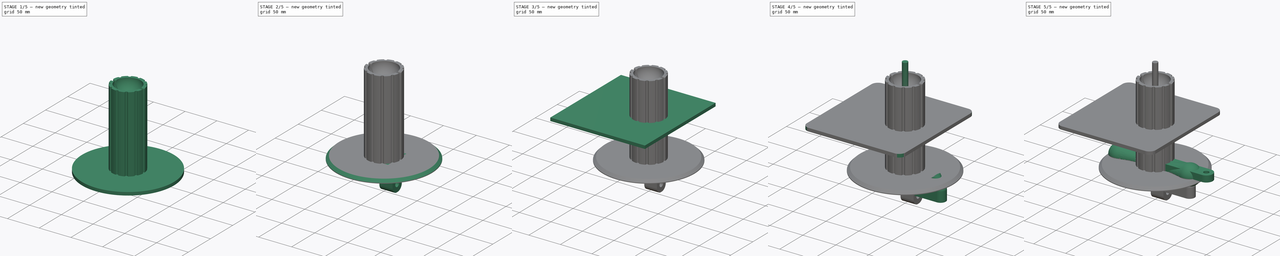
[diagram: build sequence overview — one tinted view per stage of 5, left to right]
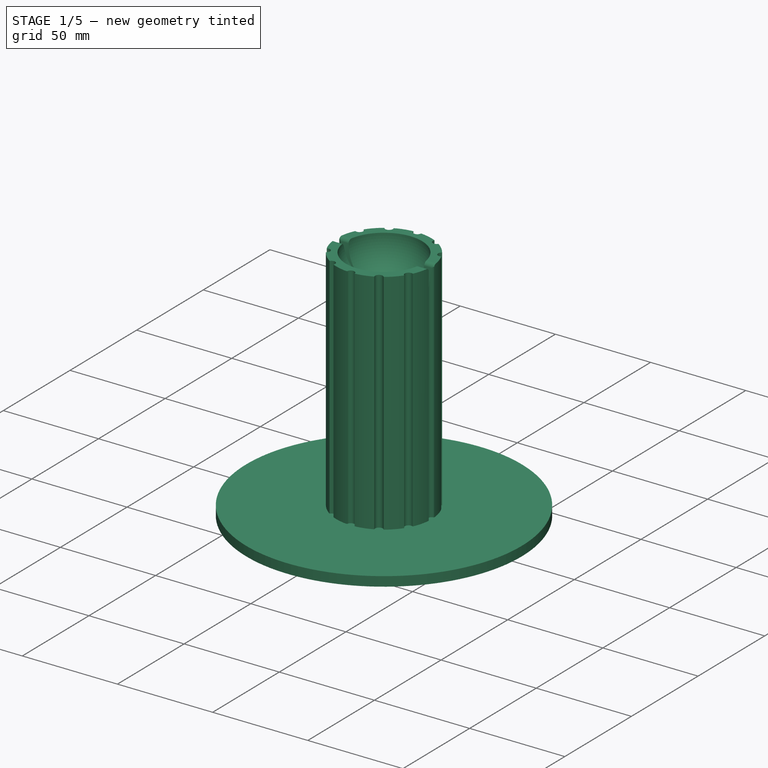
[diagram: stage 1 of 5 — iso view after this stage's code; geometry added in this stage tinted green]
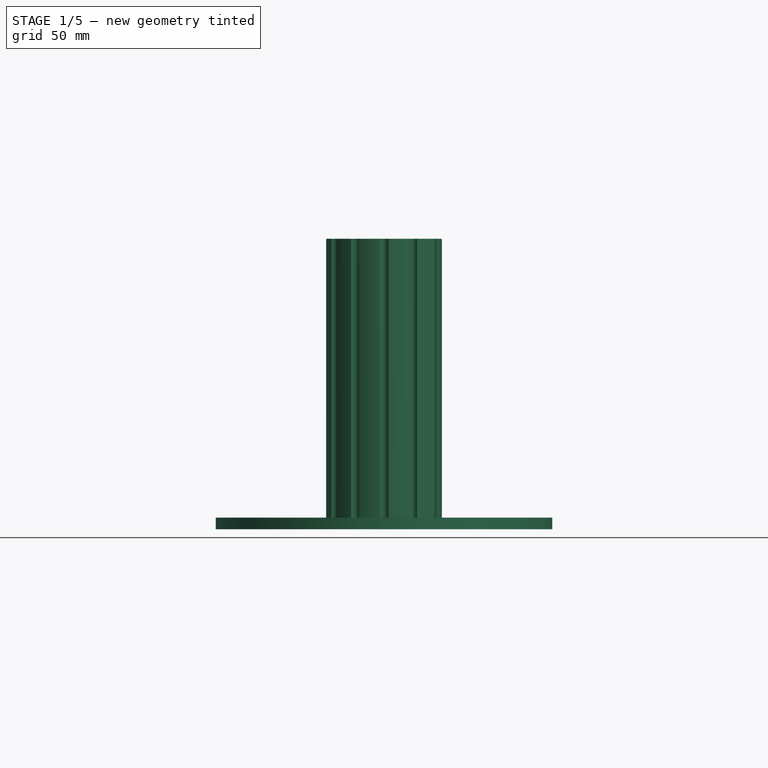
[diagram: stage 1 of 5 — front view after this stage's code; geometry added in this stage tinted green]
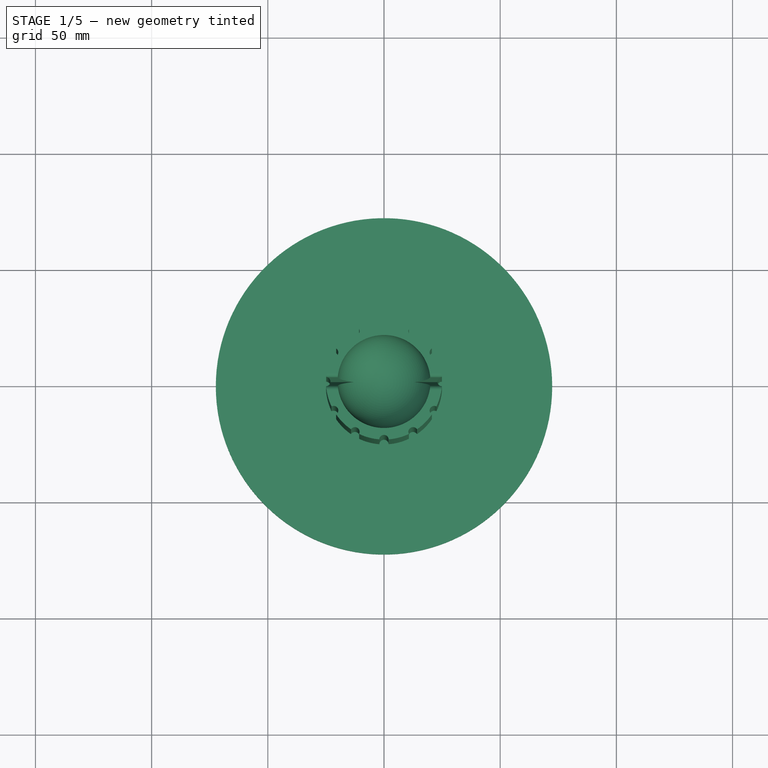
[diagram: stage 1 of 5 — top view after this stage's code; geometry added in this stage tinted green]
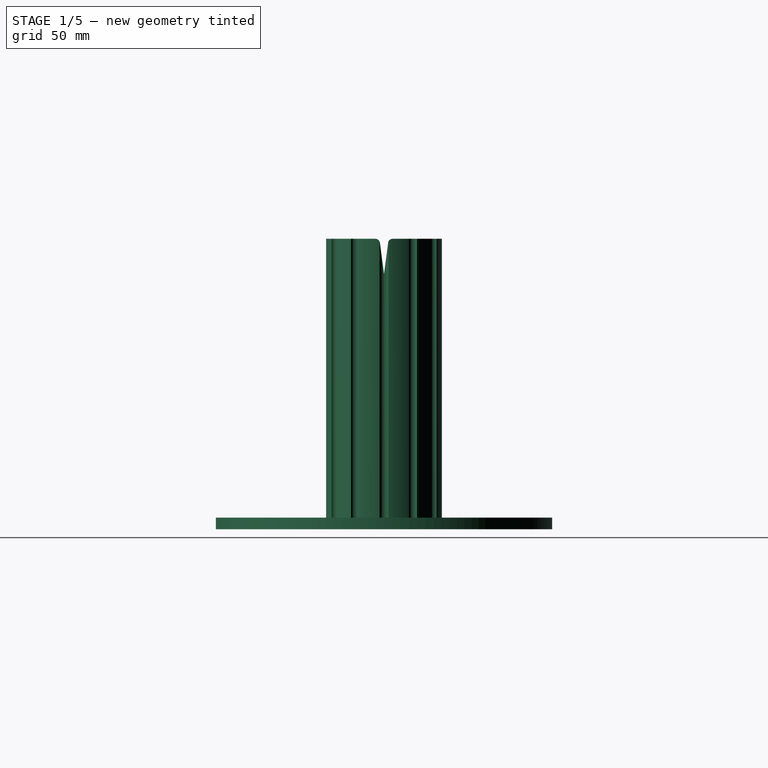
[diagram: stage 1 of 5 — right view after this stage's code; geometry added in this stage tinted green]
FCSTD DOCUMENT  (FreeCAD 0.19R24291 (Git))
Label: woolWinderParts
License: All rights reserved
LicenseURL: http://en.wikipedia.org/wiki/All_rights_reserved
objects: Sketcher::SketchObject×29, PartDesign::Pad×16, PartDesign::Body×11, PartDesign::Pocket×10, PartDesign::Plane×4, App::Part×4, PartDesign::Chamfer×2, PartDesign::Revolution×2, PartDesign::AdditiveCylinder×1, PartDesign::PolarPattern×1, PartDesign::Groove×1, PartDesign::Fillet×1, PartDesign::Line×1, PartDesign::Mirrored×1
note: 113 computed .brp shape members not serialized (recipe doc carries the construction recipe); baked Part::Feature solids carry a one-line shape summary decoded from their .brp

FEATURE [PartDesign::AdditiveCylinder] Cylinder
  Angle = 360
  AttacherType = Attacher::AttachEngine3D
  Height = 120
  Radius = 25
FEATURE [Sketcher::SketchObject] Sketch
  FullyConstrained = true
  MapMode = 5
  Support = -> [XY_Plane]
  sketch-geometry (1):
    g0: Circle CenterX=-25 CenterY=0 CenterZ=0 NormalX=0 NormalY=0 NormalZ=1 AngleXU=0 Radius=2
  constraints (3):
    c: PointOnObject(g0,g-1)
    c: DistanceX(g0,g-1) = 25
    c: Diameter(g0) = 4
FEATURE [PartDesign::Pocket] Pocket
  BaseFeature = -> Cylinder
  Length = 5
  Length2 = 100
  Profile = -> Sketch
  Reversed = true
  Type = 1
FEATURE [PartDesign::PolarPattern] PolarPattern
  Angle = 360
  Axis = -> Sketch [N_Axis]
  BaseFeature = -> Pocket
  Occurrences = 12
  Originals = -> [Pocket]
FEATURE [Sketcher::SketchObject] Sketch001
  FullyConstrained = true
  MapMode = 5
  Placement = pos=(0,0,0) rot=(1,0,0;1.5708rad)
  Support = -> [XZ_Plane]
  sketch-geometry (3):
    g0: ArcOfCircle CenterX=0 CenterY=120 CenterZ=0 NormalX=0 NormalY=0 NormalZ=1 AngleXU=0 Radius=20 StartAngle=3.14159 EndAngle=4.71239
    g1: LineSegment StartX=-20 StartY=120 StartZ=0 EndX=0 EndY=120 EndZ=0
    g2: LineSegment StartX=0 StartY=120 StartZ=0 EndX=-3.7e-15 EndY=100 EndZ=0
  constraints (9):
    c: PointOnObject(g0,g-2)
    c: PointOnObject(g0,g-2)
    c: Coincident(g1,g0)
    c: Coincident(g1,g0)
    c: Horizontal(g1)
    c: Coincident(g2,g0)
    c: Coincident(g2,g0)
    c: DistanceY(g-1,g0) = 120
    c: Distance(g1) = 20
FEATURE [PartDesign::Groove] Groove
  Angle = 360
  Axis = (0,2e-16,1)
  Base = (0,0,0)
  BaseFeature = -> PolarPattern
  Profile = -> Sketch001
  ReferenceAxis = -> Sketch001 [V_Axis]
  Reversed = true
FEATURE [Sketcher::SketchObject] Sketch002
  FullyConstrained = true
  MapMode = 5
  Placement = pos=(0,0,0) rot=(0.57735,0.57735,0.57735;2.0944rad)
  Support = -> [YZ_Plane]
  sketch-geometry (3):
    g0: LineSegment StartX=-2 StartY=120 StartZ=0 EndX=0 EndY=104.808 EndZ=0
    g1: LineSegment StartX=0 StartY=104.808 StartZ=0 EndX=2 EndY=120 EndZ=0
    g2: LineSegment StartX=2 StartY=120 StartZ=0 EndX=-2 EndY=120 EndZ=0
  constraints (8):
    c: PointOnObject(g0,g-2)
    c: Coincident(g0,g1)
    c: Coincident(g1,g2)
    c: Coincident(g2,g0)
    c: Symmetric(g0,g1,g-2)
    c: Angle(g1,g0) = 0.261799
    c: DistanceY(g-1,g1) = 120
    c: Distance(g2) = 4
FEATURE [PartDesign::Pocket] Pocket001
  BaseFeature = -> Groove
  Length = 50
  Length2 = 100
  Midplane = true
  Profile = -> Sketch002
  Type = 0
FEATURE [PartDesign::Fillet] Fillet
  Base = -> Pocket001 [Edge126,Edge48,Edge125,Edge50]
  BaseFeature = -> Pocket001
  Radius = 2
  SupportTransform = false
FEATURE [Sketcher::SketchObject] Sketch004
  FullyConstrained = false
  MapMode = 5
  Placement = pos=(0,0,0) rot=(1,0,0;3.14159rad)
  Support = -> [Fillet]
  sketch-geometry (1):
    g0: Circle CenterX=0 CenterY=0 CenterZ=0 NormalX=0 NormalY=0 NormalZ=1 AngleXU=0 Radius=72.3867
  constraints (1):
    c: Coincident(g0,g-1)
FEATURE [PartDesign::Pad] Pad
  BaseFeature = -> Fillet
  Direction = (1,1,1)
  Length = 5
  Length2 = 100
  Profile = -> Sketch004
  Type = 0
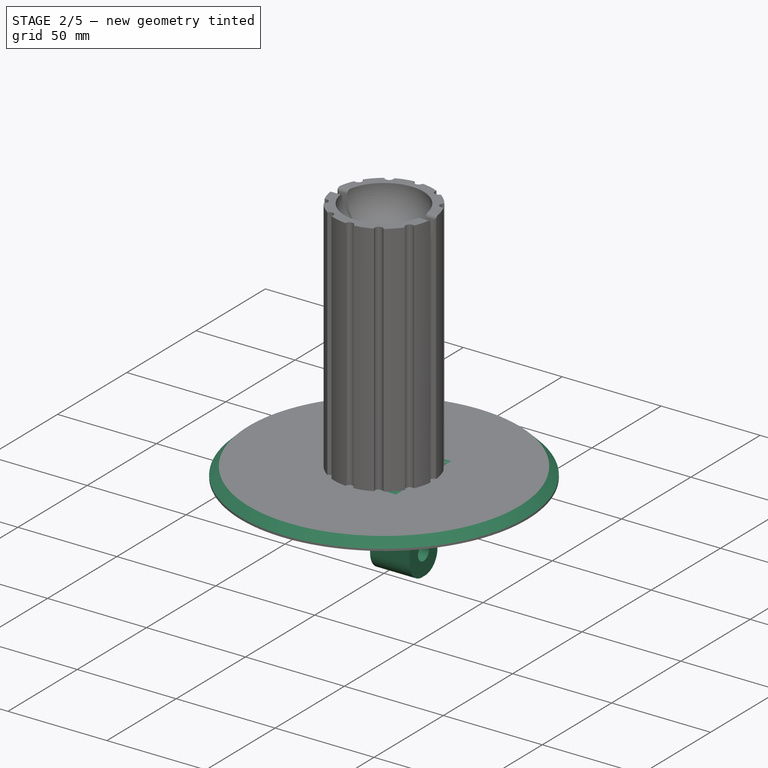
[diagram: stage 2 of 5 — iso view after this stage's code; geometry added in this stage tinted green]
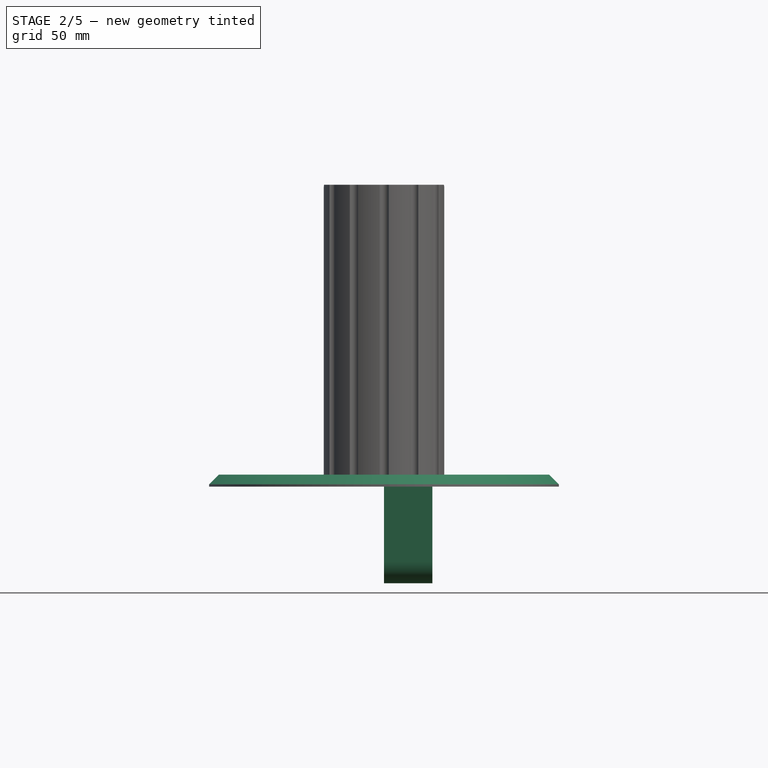
[diagram: stage 2 of 5 — front view after this stage's code; geometry added in this stage tinted green]
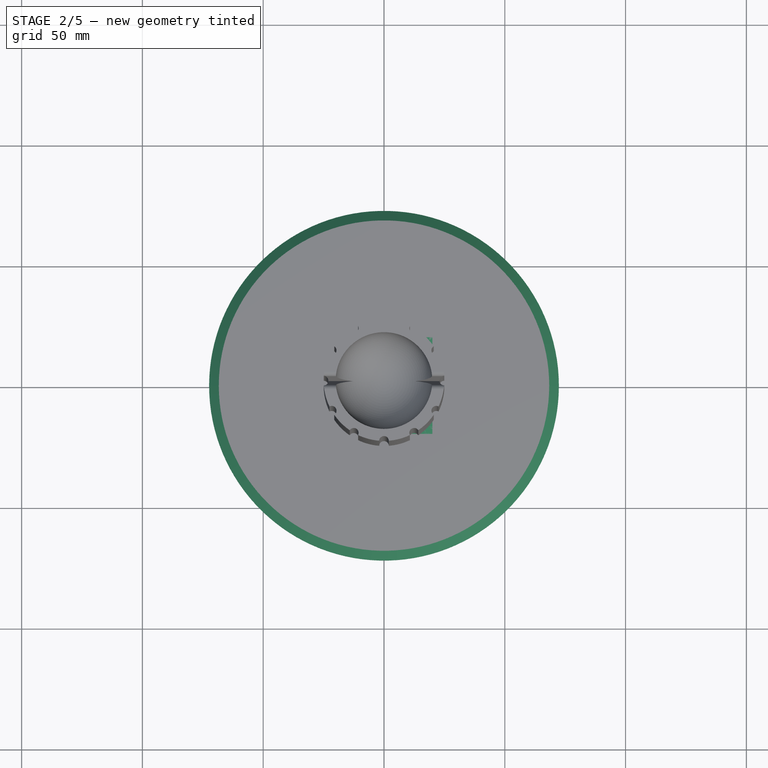
[diagram: stage 2 of 5 — top view after this stage's code; geometry added in this stage tinted green]
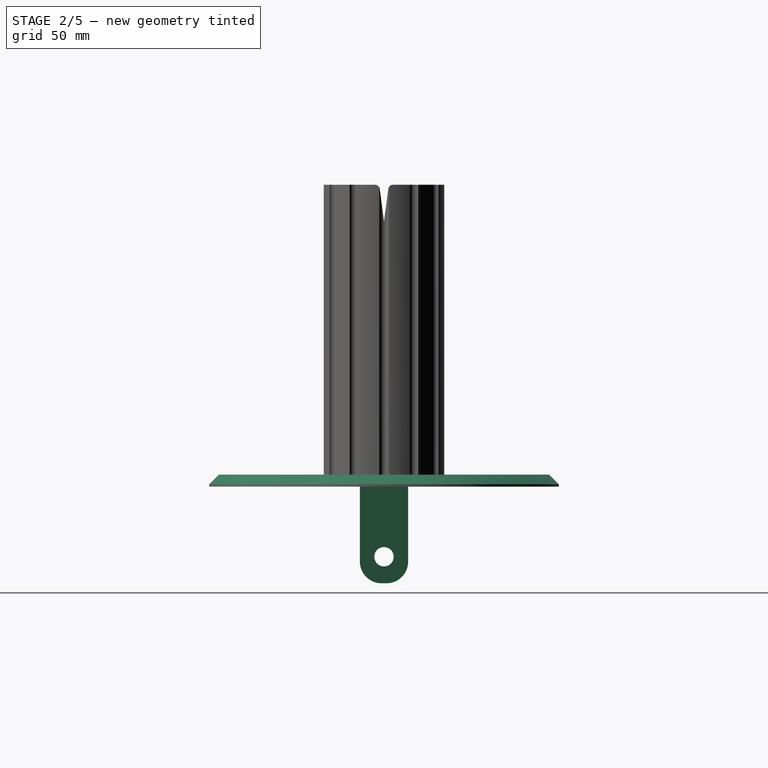
[diagram: stage 2 of 5 — right view after this stage's code; geometry added in this stage tinted green]
FEATURE [PartDesign::Chamfer] Chamfer
  Angle = 45
  Base = -> Pad [Edge2]
  BaseFeature = -> Pad
  ChamferType = 0
  FlipDirection = false
  Size = 4
  Size2 = 1
  SupportTransform = false
FEATURE [PartDesign::Body] Body002
  Group = -> [DatumLine,DatumPlane003,Sketch011,Pad003,Sketch012,Revolution001,DatumPlane004,Sketch013,Pad004,Sketch014,Pocket004,Sketch015,Pocket005]
  Origin = -> Origin012
  Placement = pos=(0,0,31) rot=(0,0,1;0rad)
  Tip = -> Pocket005
FEATURE [Sketcher::SketchObject] Sketch016
  FullyConstrained = true
  MapMode = 5
  Placement = pos=(0,0,-5) rot=(1,0,0;3.14159rad)
  Support = -> [Chamfer]
  sketch-geometry (1):
    g0: Circle CenterX=0 CenterY=0 CenterZ=0 NormalX=0 NormalY=0 NormalZ=1 AngleXU=0 Radius=4
  constraints (2):
    c: Coincident(g0,g-1)
    c: Diameter(g0) = 8
FEATURE [PartDesign::Pocket] Pocket006
  BaseFeature = -> Chamfer
  Length = 100
  Length2 = 100
  Profile = -> Sketch016
  Type = 0
FEATURE [PartDesign::Body] Body004
  Group = -> [Sketch018,Pad006]
  Origin = -> Origin014
  Placement = pos=(0,0,47) rot=(0,0,1;0rad)
  Tip = -> Pad006
FEATURE [Sketcher::SketchObject] Sketch019
  FullyConstrained = false
  MapMode = 5
  Support = -> [XY_Plane015]
  sketch-geometry (1):
    g0: Circle CenterX=0 CenterY=0 CenterZ=0 NormalX=0 NormalY=0 NormalZ=1 AngleXU=0 Radius=10
  constraints (1):
    c: Diameter(g0) = 20
FEATURE [PartDesign::Pad] Pad007
  Direction = (1,1,1)
  Length = 30
  Length2 = 100
  Profile = -> Sketch019
  Type = 0
FEATURE [Sketcher::SketchObject] Sketch020
  FullyConstrained = true
  MapMode = 5
  Placement = pos=(0,0,0) rot=(1,0,0;3.14159rad)
  Support = -> [Pad007]
  sketch-geometry (1):
    g0: Circle CenterX=0 CenterY=0 CenterZ=0 NormalX=0 NormalY=0 NormalZ=1 AngleXU=0 Radius=4
  constraints (2):
    c: Coincident(g0,g-1)
    c: Diameter(g0) = 8
FEATURE [PartDesign::Pocket] Pocket007
  BaseFeature = -> Pad007
  Length = 13
  Length2 = 100
  Profile = -> Sketch020
  Type = 0
FEATURE [Sketcher::SketchObject] Sketch021
  FullyConstrained = true
  MapMode = 5
  Placement = pos=(0,0,0) rot=(1,0,0;3.14159rad)
  Support = -> [Pocket007]
  sketch-geometry (2):
    g0: Circle CenterX=0 CenterY=0 CenterZ=0 NormalX=0 NormalY=0 NormalZ=1 AngleXU=0 Radius=5
    g1: Circle CenterX=0 CenterY=0 CenterZ=0 NormalX=0 NormalY=0 NormalZ=1 AngleXU=0 Radius=6
  constraints (4):
    c: Coincident(g0,g-1)
    c: Diameter(g0) = 10
    c: Coincident(g1,g0)
    c: Diameter(g1) = 12
FEATURE [PartDesign::Pad] Pad008
  BaseFeature = -> Pocket007
  Direction = (1,1,1)
  Length = 3.7
  Length2 = 100
  Profile = -> Sketch021
  Type = 0
FEATURE [PartDesign::Body] Body005
  Group = -> [Sketch019,Pad007,Sketch020,Pocket007,Sketch021,Pad008,Chamfer001,Sketch022,Pad009,DatumPlane005,Sketch023,Pocket008,Sketch024,Pad010,Mirrored,Sketch027,Pad011,Sketch028,Pad012,Sketch029,Sketch033,Pocket010,Pocket011]
  Origin = -> Origin015
  Placement = pos=(0,0,60) rot=(1,0,0;3.14159rad)
  Tip = -> Pocket011
FEATURE [Sketcher::SketchObject] Sketch034
  FullyConstrained = true
  MapMode = 5
  Placement = pos=(0,0,0) rot=(0.57735,0.57735,0.57735;2.0944rad)
  Support = -> [YZ_Plane018]
  sketch-geometry (11):
    g0: LineSegment StartX=-1 StartY=-45 StartZ=0 EndX=1 EndY=-45 EndZ=0
    g1: LineSegment StartX=10 StartY=-36 StartZ=0 EndX=10 EndY=-3 EndZ=0
    g2: LineSegment StartX=-10 StartY=-3 StartZ=0 EndX=-10 EndY=-36 EndZ=0
    g3: ArcOfCircle CenterX=-1 CenterY=-36 CenterZ=0 NormalX=0 NormalY=0 NormalZ=1 AngleXU=0 Radius=9 StartAngle=3.14159 EndAngle=4.71239
    g4: ArcOfCircle CenterX=1 CenterY=-36 CenterZ=0 NormalX=0 NormalY=0 NormalZ=1 AngleXU=0 Radius=9 StartAngle=4.71239 EndAngle=6.28319
    g5: Circle CenterX=0 CenterY=-34 CenterZ=0 NormalX=0 NormalY=0 NormalZ=1 AngleXU=0 Radius=4
    g6: LineSegment StartX=-10 StartY=-3 StartZ=0 EndX=-20 EndY=-3 EndZ=0
    g7: LineSegment StartX=-20 StartY=-3 StartZ=0 EndX=-20 EndY=0 EndZ=0
    g8: LineSegment StartX=-20 StartY=0 StartZ=0 EndX=20 EndY=0 EndZ=0
    g9: LineSegment StartX=10 StartY=-3 StartZ=0 EndX=20 EndY=-3 EndZ=0
    g10: LineSegment StartX=20 StartY=-3 StartZ=0 EndX=20 EndY=0 EndZ=0
  constraints (29):
    c: Vertical(g1)
    c: Tangent(g0,g3) = -1.5708
    c: Tangent(g2,g3) = -1.5708
    c: Tangent(g0,g4) = -1.5708
    c: Tangent(g1,g4) = -1.5708
    c: Symmetric(g2,g1,g-2)
    c: Distance(g2,g1) = 20
    c: Equal(g4,g3)
    c: Radius(g3) = 9
    c: PointOnObject(g5,g-2)
    c: Diameter(g5) = 8
    c: DistanceY(g-1,g5) = -34
    c: Horizontal(g6)
    c: Coincident(g6,g7)
    c: Coincident(g7,g8)
    c: PointOnObject(g8,g-1)
    c: Horizontal(g8)
    c: Vertical(g7)
    c: Distance(g6) = 10
    c: Distance(g7) = 3
    c: Coincident(g9,g10)
    c: Horizontal(g9)
    c: Vertical(g10)
    c: Equal(g9,g6)
    c: Coincident(g2,g6)
    c: Symmetric(g1,g2,g-2)
    c: Coincident(g10,g8)
    c: Coincident(g9,g1)
    c: DistanceY(g-1,g0) = -45
FEATURE [PartDesign::Pad] Pad016
  Direction = (1,1,1)
  Length = 20
  Length2 = 100
  Placement = pos=(0,0,0) rot=(0.57735,0.57735,0.57735;2.0944rad)
  Profile = -> Sketch034
  Type = 0
FEATURE [PartDesign::Body] Body008
  Group = -> [Sketch034,Pad016]
  Origin = -> Origin018
  Placement = pos=(-30.2,0,5) rot=(0,1,0;3.14159rad)
  Tip = -> Pad016
FEATURE [Sketcher::SketchObject] Sketch035
  FullyConstrained = true
  MapMode = 5
  Placement = pos=(0,0,0) rot=(0.57735,0.57735,0.57735;2.0944rad)
  Support = -> [YZ_Plane019]
  sketch-geometry (11):
    g0: LineSegment StartX=-1 StartY=-45 StartZ=0 EndX=1 EndY=-45 EndZ=0
    g1: LineSegment StartX=10 StartY=-36 StartZ=0 EndX=10 EndY=-3 EndZ=0
    g2: LineSegment StartX=-10 StartY=-3 StartZ=0 EndX=-10 EndY=-36 EndZ=0
    g3: ArcOfCircle CenterX=-1 CenterY=-36 CenterZ=0 NormalX=0 NormalY=0 NormalZ=1 AngleXU=0 Radius=9 StartAngle=3.14159 EndAngle=4.71239
    g4: ArcOfCircle CenterX=1 CenterY=-36 CenterZ=0 NormalX=0 NormalY=0 NormalZ=1 AngleXU=0 Radius=9 StartAngle=4.71239 EndAngle=6.28319
    g5: Circle CenterX=0 CenterY=-34 CenterZ=0 NormalX=0 NormalY=0 NormalZ=1 AngleXU=0 Radius=4
    g6: LineSegment StartX=-10 StartY=-3 StartZ=0 EndX=-20 EndY=-3 EndZ=0
    g7: LineSegment StartX=-20 StartY=-3 StartZ=0 EndX=-20 EndY=0 EndZ=0
    g8: LineSegment StartX=-20 StartY=0 StartZ=0 EndX=20 EndY=0 EndZ=0
    g9: LineSegment StartX=10 StartY=-3 StartZ=0 EndX=20 EndY=-3 EndZ=0
    g10: LineSegment StartX=20 StartY=-3 StartZ=0 EndX=20 EndY=0 EndZ=0
  constraints (29):
    c: Vertical(g1)
    c: Tangent(g0,g3) = -1.5708
    c: Tangent(g2,g3) = -1.5708
    c: Tangent(g0,g4) = -1.5708
    c: Tangent(g1,g4) = -1.5708
    c: Symmetric(g2,g1,g-2)
    c: Distance(g2,g1) = 20
    c: Equal(g4,g3)
    c: Radius(g3) = 9
    c: PointOnObject(g5,g-2)
    c: Diameter(g5) = 8
    c: DistanceY(g-1,g5) = -34
    c: Horizontal(g6)
    c: Coincident(g6,g7)
    c: Coincident(g7,g8)
    c: PointOnObject(g8,g-1)
    c: Horizontal(g8)
    c: Vertical(g7)
    c: Distance(g6) = 10
    c: Distance(g7) = 3
    c: Coincident(g9,g10)
    c: Horizontal(g9)
    c: Vertical(g10)
    c: Equal(g9,g6)
    c: Coincident(g2,g6)
    c: Symmetric(g1,g2,g-2)
    c: Coincident(g10,g8)
    c: Coincident(g9,g1)
    c: DistanceY(g-1,g0) = -45
FEATURE [PartDesign::Pad] Pad017
  Direction = (1,1,1)
  Length = 20
  Length2 = 100
  Placement = pos=(0,0,0) rot=(0.57735,0.57735,0.57735;2.0944rad)
  Profile = -> Sketch035
  Type = 0
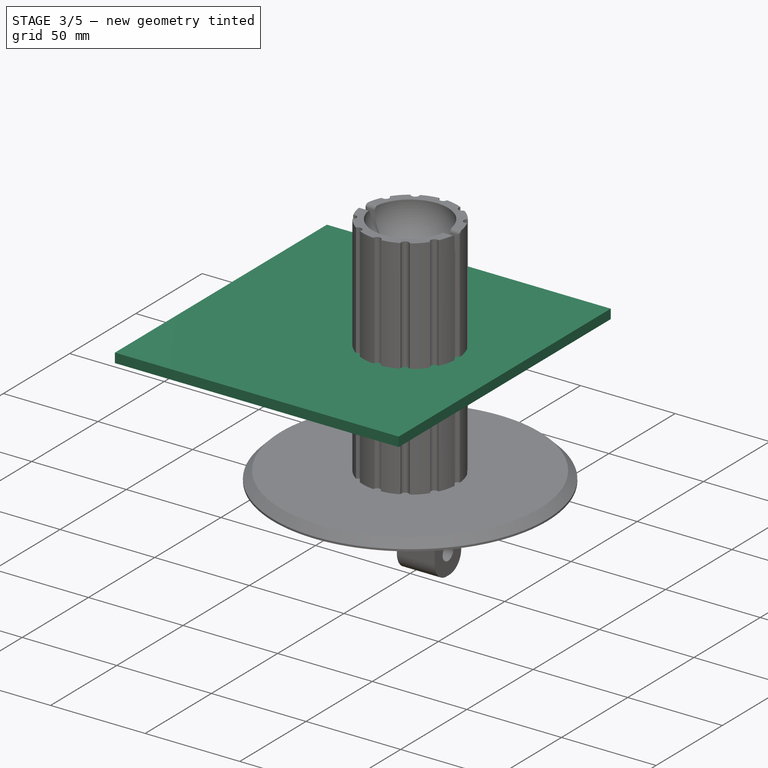
[diagram: stage 3 of 5 — iso view after this stage's code; geometry added in this stage tinted green]
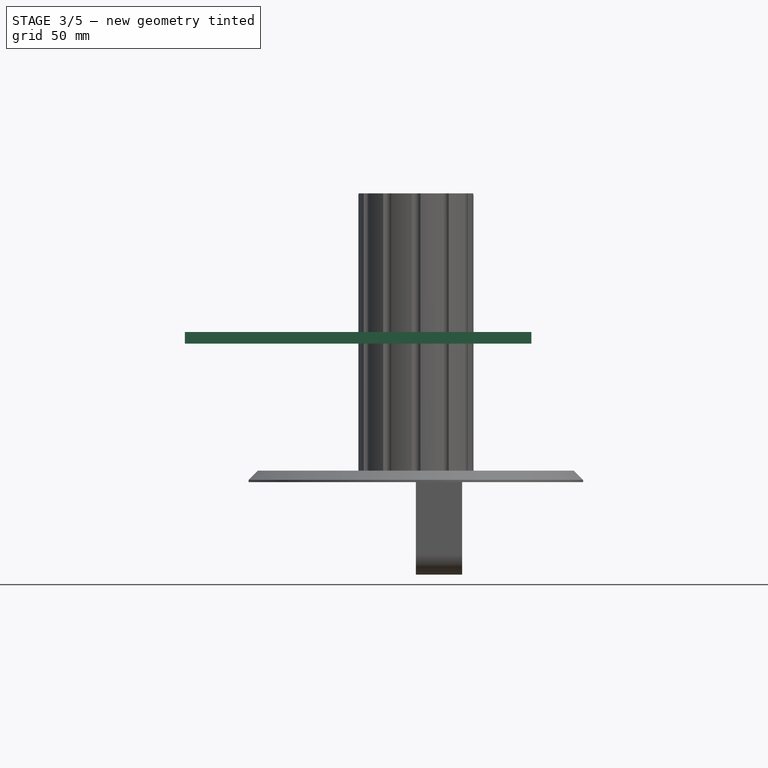
[diagram: stage 3 of 5 — front view after this stage's code; geometry added in this stage tinted green]
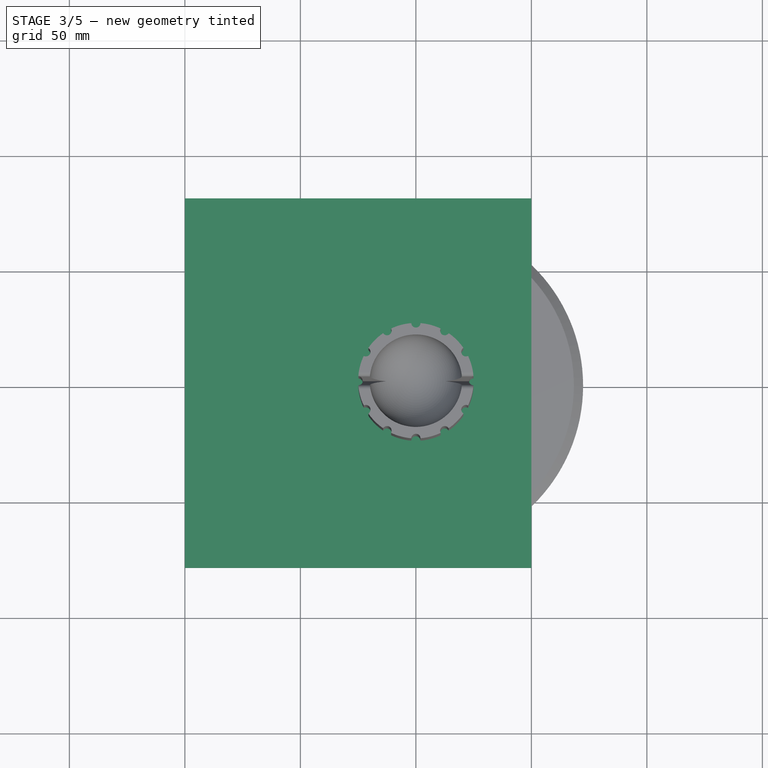
[diagram: stage 3 of 5 — top view after this stage's code; geometry added in this stage tinted green]
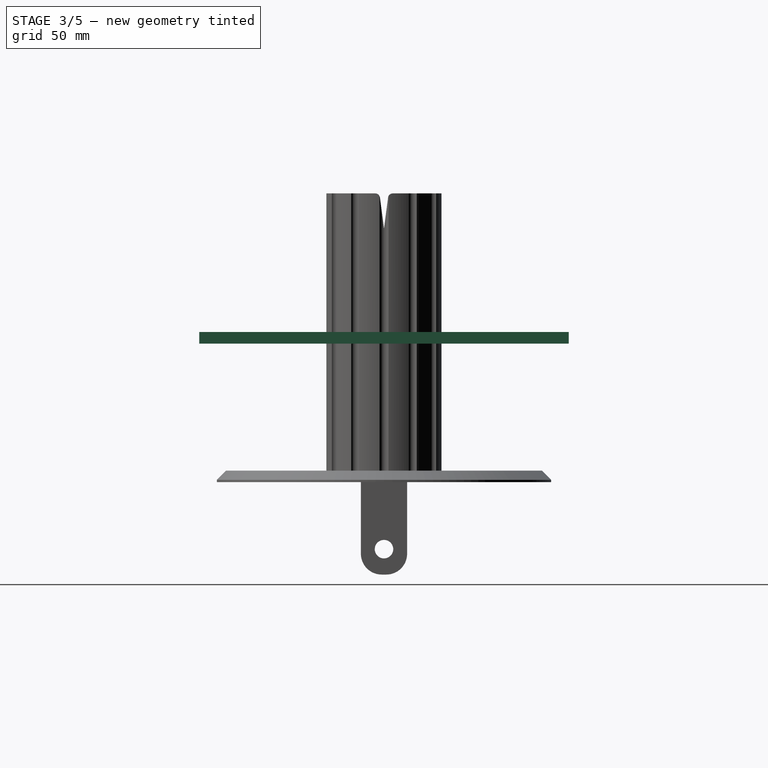
[diagram: stage 3 of 5 — right view after this stage's code; geometry added in this stage tinted green]
FEATURE [PartDesign::Chamfer] Chamfer001
  Angle = 78
  Base = -> Pad008 [Edge6]
  BaseFeature = -> Pad008
  ChamferType = 2
  FlipDirection = false
  Size = 0.15
  Size2 = 1
  SupportTransform = false
FEATURE [Sketcher::SketchObject] Sketch022
  FullyConstrained = true
  MapMode = 5
  Placement = pos=(0,0,0) rot=(1,0,0;1.5708rad)
  Support = -> [XZ_Plane015]
  sketch-geometry (8):
    g0: LineSegment StartX=-4 StartY=30 StartZ=0 EndX=-4 EndY=55 EndZ=0
    g1: LineSegment StartX=-4 StartY=55 StartZ=0 EndX=-100 EndY=55 EndZ=0
    g2: LineSegment StartX=-100 StartY=55 StartZ=0 EndX=-100 EndY=60 EndZ=0
    g3: LineSegment StartX=10 StartY=55 StartZ=0 EndX=10 EndY=30 EndZ=0
    g4: LineSegment StartX=10 StartY=30 StartZ=0 EndX=-4 EndY=30 EndZ=0
    g5: LineSegment StartX=10 StartY=55 StartZ=0 EndX=50 EndY=55 EndZ=0
    g6: LineSegment StartX=50 StartY=55 StartZ=0 EndX=50 EndY=60 EndZ=0
    g7: LineSegment StartX=50 StartY=60 StartZ=0 EndX=-100 EndY=60 EndZ=0
  constraints (24):
    c: Vertical(g0)
    c: Coincident(g0,g1)
    c: Horizontal(g1)
    c: Coincident(g1,g2)
    c: Vertical(g2)
    c: Vertical(g3)
    c: Coincident(g3,g4)
    c: DistanceY(g-1,g3) = 30
    c: Horizontal(g5)
    c: Coincident(g6,g5)
    c: Coincident(g7,g6)
    c: Horizontal(g7)
    c: Vertical(g6)
    c: Coincident(g3,g5)
    c: Coincident(g7,g2)
    c: Distance(g2,g1) = 5
    c: DistanceX(g-2,g1) = -100
    c: DistanceX(g-2,g5) = 50
    c: DistanceX(g-2,g3) = 10
    c: Horizontal(g4)
    c: Coincident(g0,g4)
    c: DistanceX(g-2,g0) = -4
    c: Horizontal(g3,g0)
    c: DistanceY(g-1,g0) = 55
FEATURE [PartDesign::Pad] Pad009
  BaseFeature = -> Chamfer001
  Direction = (1,1,1)
  Length = 20
  Length2 = 100
  Midplane = true
  Profile = -> Sketch022
  Reversed = true
  Type = 0
FEATURE [PartDesign::Plane] DatumPlane005
  AttachmentOffset = pos=(0,0,30) rot=(0,0,1;0rad)
  Length = 180.984
  MapMode = 5
  Placement = pos=(0,0,30) rot=(0,0,1;0rad)
  ResizeMode = 0
  Support = -> [XY_Plane015]
  Width = 190.984
FEATURE [Sketcher::SketchObject] Sketch023
  FullyConstrained = false
  MapMode = 5
  Placement = pos=(0,0,30) rot=(0,0,1;0rad)
  Support = -> [DatumPlane005]
  sketch-geometry (2):
    g0: Circle CenterX=0 CenterY=0 CenterZ=0 NormalX=0 NormalY=0 NormalZ=1 AngleXU=0 Radius=15.5091
    g1: Circle CenterX=0 CenterY=0 CenterZ=0 NormalX=0 NormalY=0 NormalZ=1 AngleXU=0 Radius=10
  constraints (3):
    c: Coincident(g0,g-1)
    c: Coincident(g1,g0)
    c: Diameter(g1) = 20
FEATURE [PartDesign::Pocket] Pocket008
  BaseFeature = -> Pad009
  Length = 25
  Length2 = 100
  Profile = -> Sketch023
  Refine = true
  Reversed = true
  Type = 0
FEATURE [Sketcher::SketchObject] Sketch024
  ExternalGeometry = -> [Pocket008]
  FullyConstrained = true
  MapMode = 5
  Placement = pos=(0,-10,2.2e-15) rot=(1,0,0;1.5708rad)
  Support = -> [Pocket008]
  sketch-geometry (4):
    g0: LineSegment StartX=-100 StartY=60 StartZ=0 EndX=50 EndY=60 EndZ=0
    g1: LineSegment StartX=50 StartY=60 StartZ=0 EndX=50 EndY=55 EndZ=0
    g2: LineSegment StartX=50 StartY=55 StartZ=0 EndX=-100 EndY=55 EndZ=0
    g3: LineSegment StartX=-100 StartY=55 StartZ=0 EndX=-100 EndY=60 EndZ=0
  constraints (10):
    c: Coincident(g0,g1)
    c: Coincident(g1,g2)
    c: Coincident(g2,g3)
    c: Coincident(g3,g0)
    c: Horizontal(g0)
    c: Horizontal(g2)
    c: Vertical(g1)
    c: Vertical(g3)
    c: Coincident(g0,g-3)
    c: Coincident(g1,g-4)
FEATURE [PartDesign::Pad] Pad010
  BaseFeature = -> Pocket008
  Direction = (1,1,1)
  Length = 70
  Length2 = 100
  Profile = -> Sketch024
  Type = 0
FEATURE [PartDesign::Mirrored] Mirrored
  BaseFeature = -> Pad010
  MirrorPlane = -> XZ_Plane015
  Originals = -> [Pad010]
  Refine = true
FEATURE [Sketcher::SketchObject] Sketch027
  FullyConstrained = true
  MapMode = 5
  Placement = pos=(-4,0,0) rot=(0.57735,-0.57735,-0.57735;2.0944rad)
  Support = -> [Mirrored]
  sketch-geometry (1):
    g0: Circle CenterX=0 CenterY=21 CenterZ=0 NormalX=0 NormalY=0 NormalZ=1 AngleXU=0 Radius=9
  constraints (3):
    c: PointOnObject(g0,g-2)
    c: DistanceY(g-1,g0) = 21
    c: Diameter(g0) = 18
FEATURE [PartDesign::Pad] Pad011
  BaseFeature = -> Mirrored
  Direction = (1,1,1)
  Length = 14
  Length2 = 100
  Profile = -> Sketch027
  Type = 0
FEATURE [Sketcher::SketchObject] Sketch028
  FullyConstrained = true
  MapMode = 5
  Placement = pos=(-18,0,0) rot=(0.57735,-0.57735,-0.57735;2.0944rad)
  Support = -> [Pad011]
  sketch-geometry (2):
    g0: Circle CenterX=0 CenterY=21 CenterZ=0 NormalX=0 NormalY=0 NormalZ=1 AngleXU=0 Radius=7.5
    g1: Circle CenterX=0 CenterY=21 CenterZ=0 NormalX=0 NormalY=0 NormalZ=1 AngleXU=0 Radius=8.5
  constraints (5):
    c: PointOnObject(g0,g-2)
    c: DistanceY(g-1,g0) = 21
    c: Diameter(g0) = 15
    c: Coincident(g1,g0)
    c: Diameter(g1) = 17
FEATURE [PartDesign::Pad] Pad012
  BaseFeature = -> Pad011
  Direction = (1,1,1)
  Length = 2
  Length2 = 100
  Profile = -> Sketch028
  Type = 0
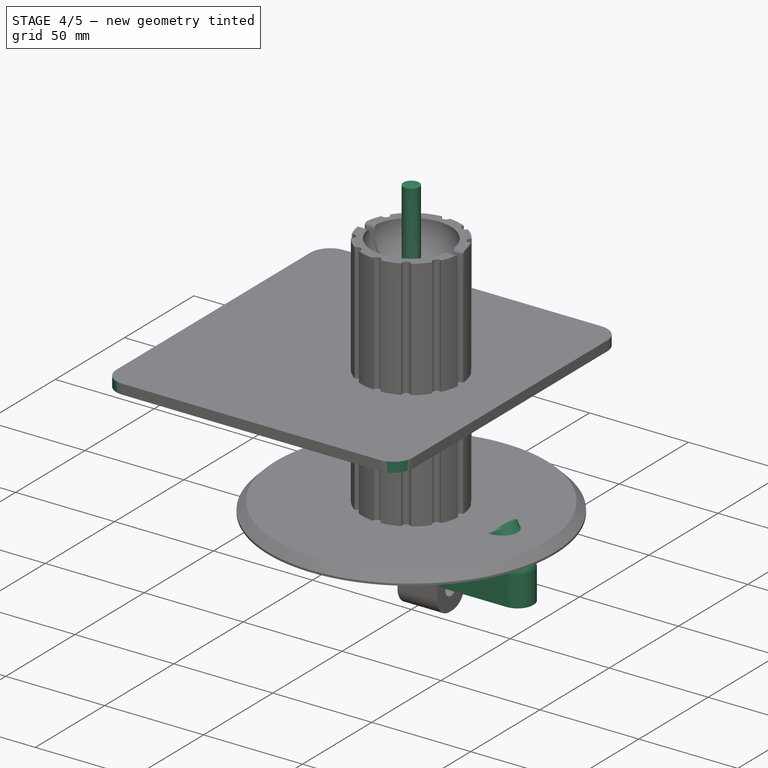
[diagram: stage 4 of 5 — iso view after this stage's code; geometry added in this stage tinted green]
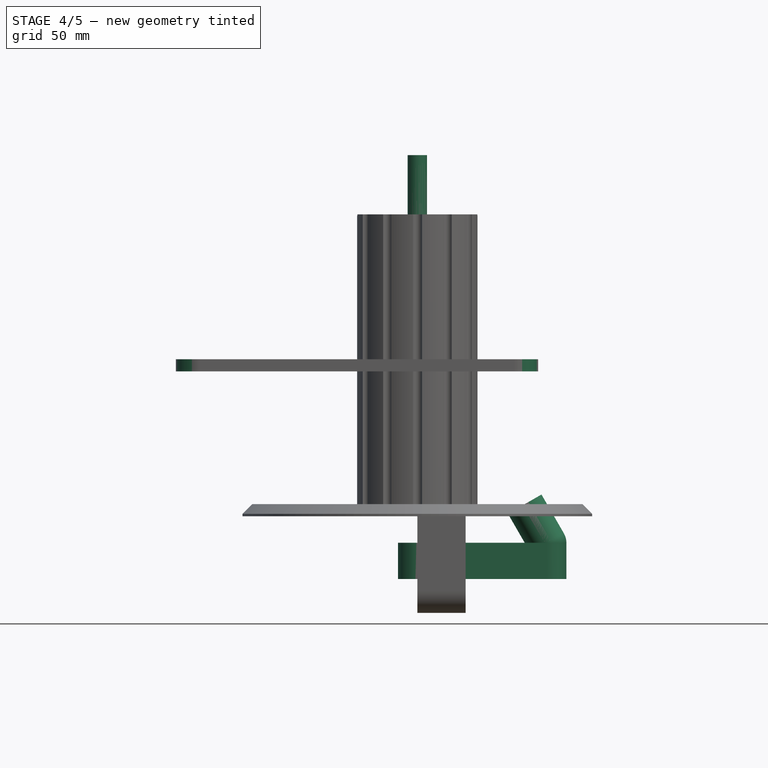
[diagram: stage 4 of 5 — front view after this stage's code; geometry added in this stage tinted green]
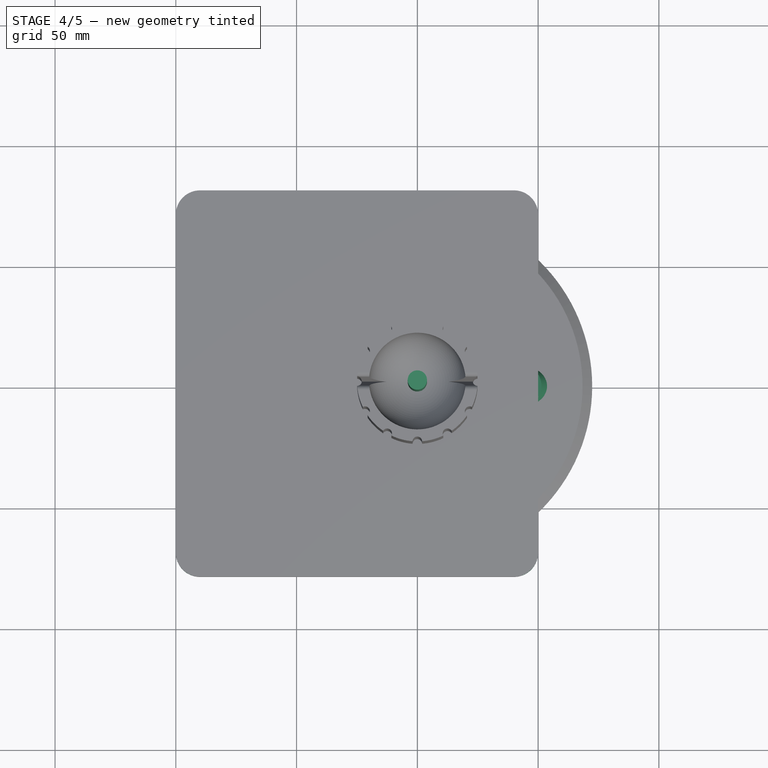
[diagram: stage 4 of 5 — top view after this stage's code; geometry added in this stage tinted green]
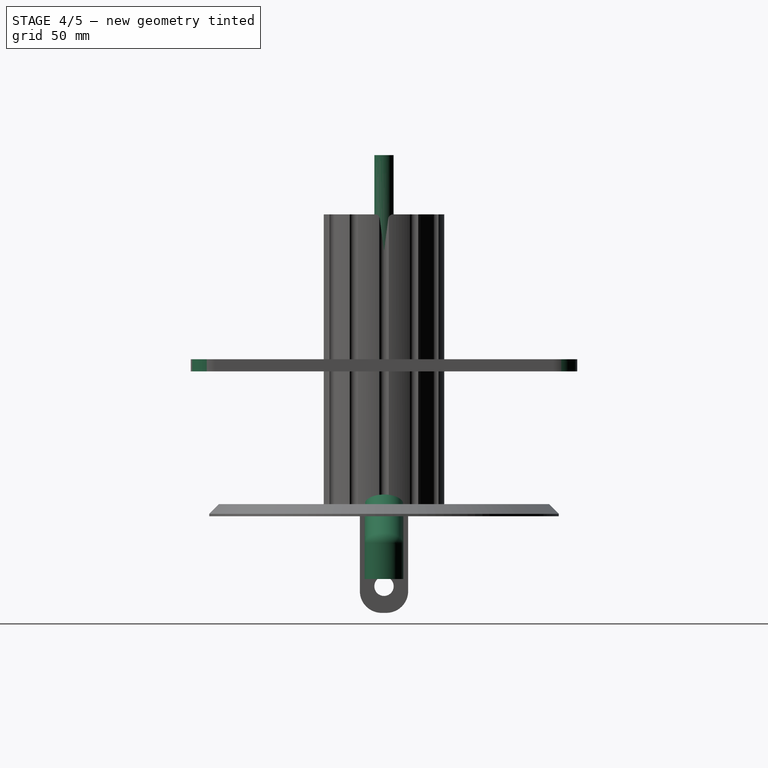
[diagram: stage 4 of 5 — right view after this stage's code; geometry added in this stage tinted green]
FEATURE [PartDesign::Line] DatumLine
  AttacherType = Attacher::AttachEngineLine
  AttachmentOffset = pos=(44.456,0,0) rot=(0,1,0;-0.523599rad)
  Length = 20
  MapMode = 29
  Placement = pos=(44.456,0,1.48e-14) rot=(0,1,0;5.75959rad)
  ResizeMode = 0
  Support = -> [Z_Axis012]
  expr: .AttachmentOffset.Base.x = 77 / tan(60deg)
  expr: .AttachmentOffset.Rotation.Angle = -30
FEATURE [PartDesign::Plane] DatumPlane003
  AttachmentOffset = pos=(44.456,0,0) rot=(0,1,0;-0.523599rad)
  Length = 84.7047
  MapMode = 5
  Placement = pos=(44.456,0,0) rot=(0,1,0;5.75959rad)
  ResizeMode = 0
  Support = -> [XY_Plane012]
  Width = 62.0541
  expr: .AttachmentOffset.Base.x = 77 / tan(60deg)
FEATURE [Sketcher::SketchObject] Sketch011
  FullyConstrained = true
  MapMode = 5
  Placement = pos=(44.456,0,0) rot=(0,-1,0;0.523599rad)
  Support = -> [DatumPlane003]
  sketch-geometry (1):
    g0: Circle CenterX=0 CenterY=0 CenterZ=0 NormalX=0 NormalY=0 NormalZ=1 AngleXU=0 Radius=8
  constraints (2):
    c: Coincident(g0,g-1)
    c: Diameter(g0) = 16
FEATURE [PartDesign::Pad] Pad003
  Direction = (1,1,1)
  Length = 18.5
  Length2 = 100
  Placement = pos=(44.456,0,0) rot=(0,-1,0;0.523599rad)
  Profile = -> Sketch011
  Reversed = true
  Type = 0
FEATURE [Sketcher::SketchObject] Sketch012
  ExternalGeometry = -> [Pad003,DatumLine]
  FullyConstrained = true
  MapMode = 5
  Placement = pos=(0,0,0) rot=(1,0,0;1.5708rad)
  Support = -> [XZ_Plane012]
  sketch-geometry (3):
    g0: ArcOfCircle CenterX=53.706 CenterY=-16.0215 CenterZ=0 NormalX=0 NormalY=0 NormalZ=1 AngleXU=0 Radius=8 StartAngle=3.66519 EndAngle=5.23599
    g1: LineSegment StartX=46.7778 StartY=-20.0215 StartZ=0 EndX=53.706 EndY=-16.0215 EndZ=0
    g2: LineSegment StartX=53.706 StartY=-16.0215 StartZ=0 EndX=57.706 EndY=-22.9497 EndZ=0
  constraints (8):
    c: Coincident(g0,g-3)
    c: PointOnObject(g0,g-4)
    c: PointOnObject(g0,g-4)
    c: Perpendicular(g0,g-3)
    c: Coincident(g1,g0)
    c: Coincident(g1,g0)
    c: Coincident(g2,g0)
    c: Coincident(g2,g0)
FEATURE [PartDesign::Revolution] Revolution001
  Angle = 360
  Axis = (-0.5,3e-16,0.866025)
  Base = (44.456,0,1.48e-14)
  BaseFeature = -> Pad003
  Placement = pos=(44.456,0,0) rot=(0,-1,0;0.523599rad)
  Profile = -> Sketch012
  ReferenceAxis = -> DatumLine
  Reversed = true
FEATURE [PartDesign::Plane] DatumPlane004
  AttachmentOffset = pos=(0,0,-16) rot=(0,0,1;0rad)
  Length = 60
  MapMode = 5
  Placement = pos=(0,0,-16) rot=(0,0,1;0rad)
  ResizeMode = 0
  Support = -> [XY_Plane012]
  Width = 60
FEATURE [Sketcher::SketchObject] Sketch013
  FullyConstrained = true
  MapMode = 5
  Placement = pos=(0,0,-16) rot=(0,0,1;0rad)
  Support = -> [DatumPlane004]
  expr: Constraints[8] = (77 + 16) / tan(60deg)
  sketch-geometry (4):
    g0: ArcOfCircle CenterX=0 CenterY=0 CenterZ=0 NormalX=0 NormalY=0 NormalZ=1 AngleXU=0 Radius=8 StartAngle=1.5708 EndAngle=4.71239
    g1: ArcOfCircle CenterX=53.6936 CenterY=1.92e-14 CenterZ=0 NormalX=0 NormalY=0 NormalZ=1 AngleXU=0 Radius=8 StartAngle=4.71239 EndAngle=7.85398
    g2: LineSegment StartX=5.6e-15 StartY=-8 StartZ=0 EndX=53.6936 EndY=-8 EndZ=0
    g3: LineSegment StartX=4e-15 StartY=8 StartZ=0 EndX=53.6936 EndY=8 EndZ=0
  constraints (9):
    c: Tangent(g0,g3) = 1.5708
    c: Tangent(g0,g2) = -1.5708
    c: Tangent(g2,g1) = -1.5708
    c: Tangent(g3,g1) = 1.5708
    c: Horizontal(g2)
    c: Equal(g0,g1)
    c: Coincident(g0,g-1)
    c: Diameter(g1) = 16
    c: Distance(g1,g0) = 53.6936
FEATURE [PartDesign::Pad] Pad004
  BaseFeature = -> Revolution001
  Direction = (1,1,1)
  Length = 15
  Length2 = 100
  Placement = pos=(44.456,0,0) rot=(0,-1,0;0.523599rad)
  Profile = -> Sketch013
  Reversed = true
  Type = 0
FEATURE [PartDesign::Body] Body
  Group = -> [Cylinder,Sketch,Pocket,PolarPattern,Sketch001,Groove,Sketch002,Pocket001,Fillet,Sketch004,Pad,Chamfer,Sketch016,Pocket006]
  Origin = -> Origin
  Placement = pos=(0,0,5) rot=(0,1,0;0rad)
  Tip = -> Pocket006
FEATURE [Sketcher::SketchObject] Sketch017
  FullyConstrained = true
  MapMode = 5
  Support = -> [XY_Plane013]
  sketch-geometry (1):
    g0: Circle CenterX=0 CenterY=0 CenterZ=0 NormalX=0 NormalY=0 NormalZ=1 AngleXU=0 Radius=4
  constraints (2):
    c: Coincident(g0,g-1)
    c: Diameter(g0) = 8
FEATURE [PartDesign::Pad] Pad005
  Direction = (1,1,1)
  Length = 144.5
  Length2 = 100
  Profile = -> Sketch017
  Type = 0
FEATURE [PartDesign::Body] Body003
  Group = -> [Sketch017,Pad005]
  Origin = -> Origin013
  Placement = pos=(54.4,0,13.75) rot=(0,-1,0;0.523599rad)
  Tip = -> Pad005
FEATURE [Sketcher::SketchObject] Sketch018
  FullyConstrained = true
  MapMode = 5
  Support = -> [XY_Plane014]
  sketch-geometry (1):
    g0: Circle CenterX=0 CenterY=0 CenterZ=0 NormalX=0 NormalY=0 NormalZ=1 AngleXU=0 Radius=4
  constraints (2):
    c: Coincident(g0,g-1)
    c: Diameter(g0) = 8
FEATURE [PartDesign::Pad] Pad006
  Direction = (1,1,1)
  Length = 42.45
  Length2 = 100
  Profile = -> Sketch018
  Type = 0
FEATURE [Sketcher::SketchObject] Sketch029
  FullyConstrained = true
  MapMode = 5
  Placement = pos=(-18,0,0) rot=(0.57735,-0.57735,-0.57735;2.0944rad)
  Support = -> [Pad012]
  sketch-geometry (1):
    g0: Circle CenterX=0 CenterY=21 CenterZ=0 NormalX=0 NormalY=0 NormalZ=1 AngleXU=0 Radius=4
  constraints (3):
    c: PointOnObject(g0,g-2)
    c: Diameter(g0) = 8
    c: DistanceY(g-1,g0) = 21
FEATURE [PartDesign::Pocket] Pocket010
  BaseFeature = -> Pad012
  Length = 44
  Length2 = 100
  Midplane = true
  Profile = -> Sketch029
  Type = 0
FEATURE [PartDesign::Body] Body007
  Group = -> [Sketch032,Pad015]
  Origin = -> Origin017
  Tip = -> Pad015
FEATURE [Sketcher::SketchObject] Sketch033
  ExternalGeometry = -> [Pocket010]
  FullyConstrained = true
  MapMode = 5
  Placement = pos=(0,0,55) rot=(1,0,0;3.14159rad)
  Support = -> [Pocket010]
  sketch-geometry (13):
    g0: ArcOfCircle CenterX=-90 CenterY=70 CenterZ=0 NormalX=0 NormalY=0 NormalZ=1 AngleXU=0 Radius=10 StartAngle=1.5708 EndAngle=3.14159
    g1: ArcOfCircle CenterX=-90 CenterY=-70 CenterZ=0 NormalX=0 NormalY=0 NormalZ=1 AngleXU=0 Radius=10 StartAngle=3.14159 EndAngle=4.71239
    g2: ArcOfCircle CenterX=40 CenterY=-70 CenterZ=0 NormalX=0 NormalY=0 NormalZ=1 AngleXU=0 Radius=10 StartAngle=4.71239 EndAngle=6.28319
    g3: ArcOfCircle CenterX=40 CenterY=70 CenterZ=0 NormalX=0 NormalY=0 NormalZ=1 AngleXU=0 Radius=10 StartAngle=1e-16 EndAngle=1.5708
    g4: LineSegment StartX=-100 StartY=70 StartZ=0 EndX=-100 EndY=80 EndZ=0
    g5: LineSegment StartX=-100 StartY=80 StartZ=0 EndX=-90 EndY=80 EndZ=0
    g6: LineSegment StartX=-90 StartY=-80 StartZ=0 EndX=-100 EndY=-80 EndZ=0
    g7: LineSegment StartX=-100 StartY=-80 StartZ=0 EndX=-100 EndY=-70 EndZ=0
    g8: LineSegment StartX=40 StartY=-80 StartZ=0 EndX=50 EndY=-80 EndZ=0
    g9: LineSegment StartX=50 StartY=-70 StartZ=0 EndX=50 EndY=-80 EndZ=0
    g10: LineSegment StartX=50 StartY=-70 StartZ=0 EndX=50 EndY=-80 EndZ=0
    g11: LineSegment StartX=40 StartY=80 StartZ=0 EndX=50 EndY=80 EndZ=0
    g12: LineSegment StartX=50 StartY=80 StartZ=0 EndX=50 EndY=70 EndZ=0
  constraints (32):
    c: Equal(g0,g1)
    c: Equal(g1,g2)
    c: Equal(g2,g3)
    c: Radius(g0) = 10
    c: Coincident(g5,g4)
    c: Coincident(g7,g6)
    c: Coincident(g9,g8)
    c: Coincident(g10,g2)
    c: Coincident(g10,g8)
    c: Coincident(g8,g-4)
    c: Horizontal(g8)
    c: Vertical(g9)
    c: Horizontal(g11)
    c: Coincident(g12,g11)
    c: Vertical(g12)
    c: Vertical(g11,g8)
    c: Horizontal(g11,g4)
    c: Vertical(g4)
    c: Horizontal(g5)
    c: Coincident(g4,g-3)
    c: Horizontal(g6)
    c: Vertical(g7)
    c: Vertical(g6,g4)
    c: Horizontal(g6,g8)
    c: Tangent(g6,g1) = 1.5708
    c: Tangent(g7,g1) = 1.5708
    c: Tangent(g4,g0) = 1.5708
    c: Tangent(g5,g0) = 1.5708
    c: Tangent(g12,g3) = 1.5708
    c: Tangent(g11,g3) = 1.5708
    c: Tangent(g8,g2) = -1.5708
    c: Tangent(g9,g2) = 1.5708
FEATURE [PartDesign::Pocket] Pocket011
  BaseFeature = -> Pocket010
  Length = 5
  Length2 = 100
  Profile = -> Sketch033
  Type = 1
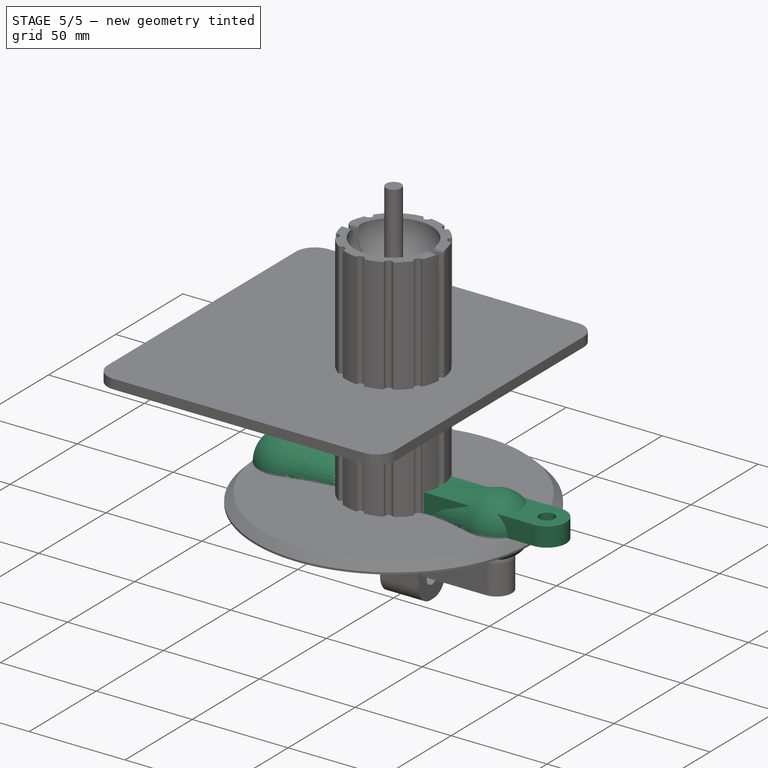
[diagram: stage 5 of 5 — iso view after this stage's code; geometry added in this stage tinted green]
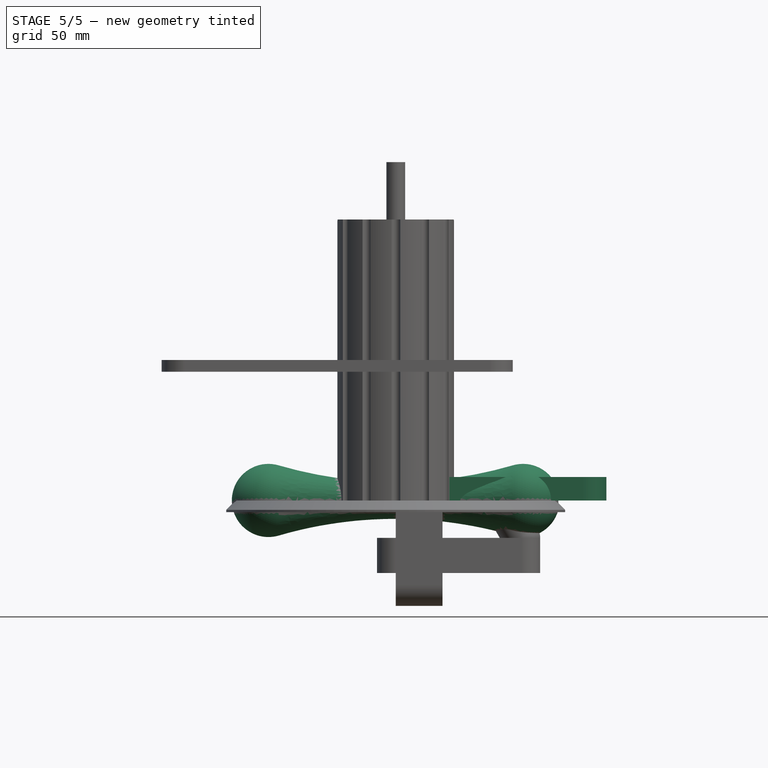
[diagram: stage 5 of 5 — front view after this stage's code; geometry added in this stage tinted green]
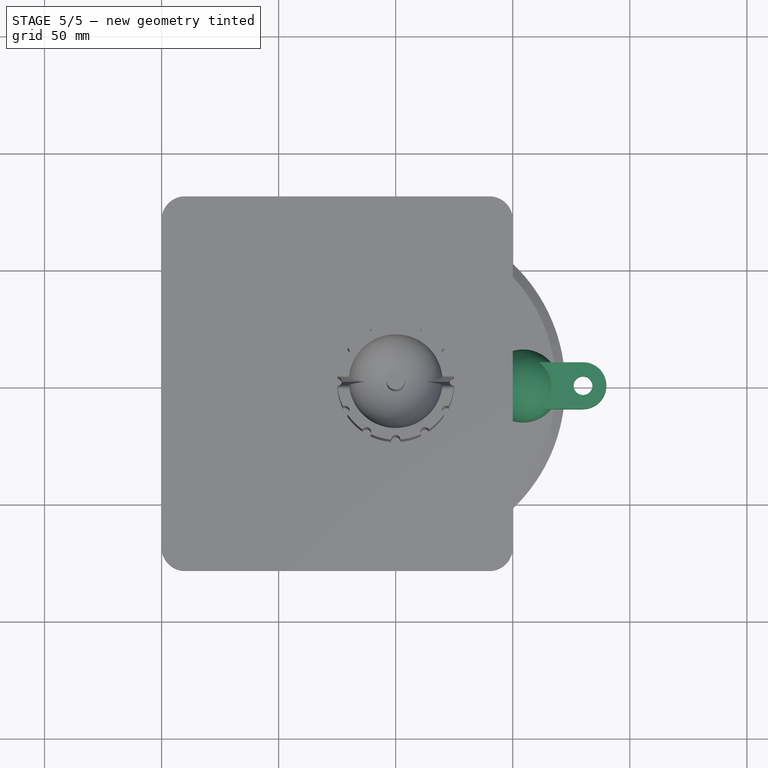
[diagram: stage 5 of 5 — top view after this stage's code; geometry added in this stage tinted green]
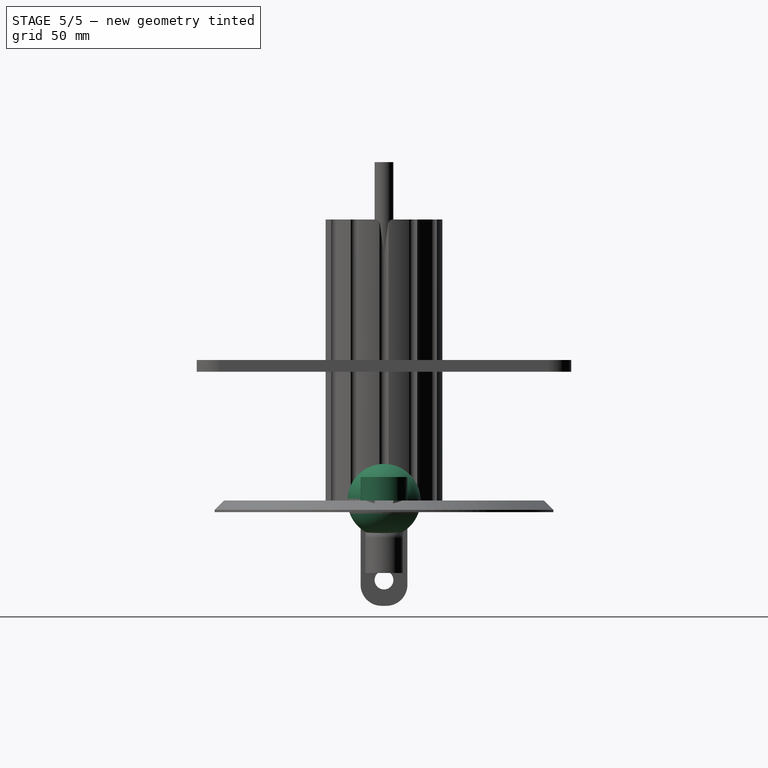
[diagram: stage 5 of 5 — right view after this stage's code; geometry added in this stage tinted green]
FEATURE [Sketcher::SketchObject] Sketch014
  FullyConstrained = true
  MapMode = 5
  Placement = pos=(0,0,-16) rot=(0,0,1;0rad)
  Support = -> [DatumPlane004]
  sketch-geometry (4):
    g0: ArcOfCircle CenterX=0 CenterY=0 CenterZ=0 NormalX=0 NormalY=0 NormalZ=1 AngleXU=0 Radius=6.8049 StartAngle=0.549127 EndAngle=2.19977
    g1: LineSegment StartX=4.00341 StartY=-5.50267 StartZ=0 EndX=5.80445 EndY=3.55177 EndZ=0
    g2: LineSegment StartX=-5.80445 StartY=-3.55177 StartZ=0 EndX=-4.00341 EndY=5.50267 EndZ=0
    g3: ArcOfCircle CenterX=0 CenterY=0 CenterZ=0 NormalX=0 NormalY=0 NormalZ=1 AngleXU=0 Radius=6.8049 StartAngle=3.69072 EndAngle=5.34136
  constraints (12):
    c: Coincident(g0,g-1)
    c: Radius(g0) = 6.8049
    c: Distance(g1,g2) = 10
    c: Coincident(g0,g1)
    c: Coincident(g3,g1)
    c: Equal(g0,g3)
    c: Coincident(g0,g2)
    c: Coincident(g3,g2)
    c: Coincident(g0,g3)
    c: Parallel(g1,g2)
    c: Equal(g1,g2)
    c: Angle(g2,g-1) = 1.76715
FEATURE [PartDesign::Pocket] Pocket004
  BaseFeature = -> Pad004
  Length = 5
  Length2 = 100
  Placement = pos=(44.456,0,0) rot=(0,-1,0;0.523599rad)
  Profile = -> Sketch014
  Type = 1
FEATURE [Sketcher::SketchObject] Sketch015
  FullyConstrained = true
  MapMode = 5
  Placement = pos=(44.456,0,7.1e-15) rot=(0,-1,0;0.523599rad)
  Support = -> [Pocket004]
  sketch-geometry (1):
    g0: Circle CenterX=0 CenterY=0 CenterZ=0 NormalX=0 NormalY=0 NormalZ=1 AngleXU=0 Radius=4
  constraints (2):
    c: Coincident(g0,g-1)
    c: Diameter(g0) = 8
FEATURE [PartDesign::Pocket] Pocket005
  BaseFeature = -> Pocket004
  Length = 20
  Length2 = 100
  Placement = pos=(44.456,0,0) rot=(0,-1,0;0.523599rad)
  Profile = -> Sketch015
  Type = 0
FEATURE [Sketcher::SketchObject] Sketch031
  FullyConstrained = true
  MapMode = 5
  Support = -> [XY_Plane016]
  sketch-geometry (1):
    g0: Circle CenterX=0 CenterY=0 CenterZ=0 NormalX=0 NormalY=0 NormalZ=1 AngleXU=0 Radius=4
  constraints (2):
    c: Coincident(g0,g-1)
    c: Diameter(g0) = 8
FEATURE [PartDesign::Pad] Pad014
  Direction = (1,1,1)
  Length = 114
  Length2 = 100
  Profile = -> Sketch031
  Type = 0
FEATURE [PartDesign::Body] Body006
  Group = -> [Sketch031,Pad014]
  Origin = -> Origin016
  Placement = pos=(0,0,10) rot=(0,1,0;3.14159rad)
  Tip = -> Pad014
FEATURE [Sketcher::SketchObject] Sketch032
  FullyConstrained = true
  MapMode = 5
  Support = -> [XY_Plane017]
  sketch-geometry (6):
    g0: ArcOfCircle CenterX=0 CenterY=0 CenterZ=0 NormalX=0 NormalY=0 NormalZ=1 AngleXU=0 Radius=10 StartAngle=1.5708 EndAngle=4.71239
    g1: ArcOfCircle CenterX=80 CenterY=-5e-16 CenterZ=0 NormalX=0 NormalY=0 NormalZ=1 AngleXU=0 Radius=10 StartAngle=4.71239 EndAngle=7.85398
    g2: LineSegment StartX=-1.8e-15 StartY=-10 StartZ=0 EndX=80 EndY=-10 EndZ=0
    g3: LineSegment StartX=-1.6e-15 StartY=10 StartZ=0 EndX=80 EndY=10 EndZ=0
    g4: Circle CenterX=0 CenterY=0 CenterZ=0 NormalX=0 NormalY=0 NormalZ=1 AngleXU=0 Radius=4
    g5: Circle CenterX=80 CenterY=-5e-16 CenterZ=0 NormalX=0 NormalY=0 NormalZ=1 AngleXU=0 Radius=4
  constraints (13):
    c: Tangent(g0,g3) = 1.5708
    c: Tangent(g0,g2) = -1.5708
    c: Tangent(g2,g1) = -1.5708
    c: Tangent(g3,g1) = 1.5708
    c: Horizontal(g2)
    c: Equal(g0,g1)
    c: Coincident(g0,g-1)
    c: Distance(g0,g1) = 80
    c: Diameter(g0) = 20
    c: Coincident(g4,g0)
    c: Diameter(g4) = 8
    c: Coincident(g5,g1)
    c: Diameter(g5) = 8
FEATURE [PartDesign::Pad] Pad015
  Direction = (1,1,1)
  Length = 10
  Length2 = 100
  Profile = -> Sketch032
  Type = 0
FEATURE [PartDesign::Body] Body009
  Group = -> [Sketch035,Pad017]
  Origin = -> Origin019
  Placement = pos=(-74.2,0,5) rot=(0,1,0;3.14159rad)
  Tip = -> Pad017
FEATURE [Sketcher::SketchObject] Sketch036
  FullyConstrained = true
  MapMode = 5
  Support = -> [XY_Plane020]
  sketch-geometry (1):
    g0: Circle CenterX=0 CenterY=0 CenterZ=0 NormalX=0 NormalY=0 NormalZ=1 AngleXU=0 Radius=4
  constraints (2):
    c: Coincident(g0,g-1)
    c: Diameter(g0) = 8
FEATURE [PartDesign::Pad] Pad018
  Direction = (1,1,1)
  Length = 130
  Length2 = 100
  Profile = -> Sketch036
  Type = 0
FEATURE [PartDesign::Body] Body010
  Group = -> [Sketch036,Pad018]
  Origin = -> Origin020
  Placement = pos=(80,0,0) rot=(0,0,1;0rad)
  Tip = -> Pad018
FEATURE [Sketcher::SketchObject] Sketch037
  FullyConstrained = true
  MapMode = 5
  Placement = pos=(0,0,0) rot=(1,0,0;1.5708rad)
  Support = -> [XZ_Plane021]
  sketch-geometry (4):
    g0: LineSegment StartX=70 StartY=0 StartZ=0 EndX=-70 EndY=0 EndZ=0
    g1: ArcOfCircle CenterX=5.7e-15 CenterY=186.429 CenterZ=0 NormalX=0 NormalY=0 NormalZ=1 AngleXU=0 Radius=178.571 StartAngle=4.42859 EndAngle=4.99618
    g2: ArcOfCircle CenterX=54.375 CenterY=3.4e-15 CenterZ=0 NormalX=0 NormalY=0 NormalZ=1 AngleXU=0 Radius=15.625 StartAngle=0 EndAngle=1.85459
    g3: ArcOfCircle CenterX=-54.375 CenterY=0 CenterZ=0 NormalX=0 NormalY=0 NormalZ=1 AngleXU=0 Radius=15.625 StartAngle=1.287 EndAngle=3.14159
  constraints (11):
    c: PointOnObject(g0,g-1)
    c: Symmetric(g0,g0,g-2)
    c: Tangent(g1,g2) = 1.5708
    c: Tangent(g1,g3) = 1.5708
    c: Symmetric(g3,g2,g-2)
    c: Distance(g1,g1) = 100
    c: Distance(g0,g0) = 140
    c: PointOnObject(g3,g0)
    c: Symmetric(g1,g1,g-2)
    c: Coincident(g3,g0)
    c: Distance(g1,g0) = 15
FEATURE [PartDesign::Revolution] Revolution003
  Angle = 360
  Axis = (1,0,0)
  Base = (0,0,0)
  Placement = pos=(0,0,0) rot=(1,0,0;1.5708rad)
  Profile = -> Sketch037
  ReferenceAxis = -> X_Axis021
FEATURE [PartDesign::Plane] DatumPlane006
  AttachmentOffset = pos=(0,0,70) rot=(0,0,1;0rad)
  Length = 60
  MapMode = 5
  Placement = pos=(70,-1.55e-14,1.55e-14) rot=(0.57735,0.57735,0.57735;2.0944rad)
  ResizeMode = 0
  Support = -> [YZ_Plane021]
  Width = 60
FEATURE [Sketcher::SketchObject] Sketch038
  FullyConstrained = true
  MapMode = 5
  Placement = pos=(70,-1.55e-14,1.55e-14) rot=(0.57735,0.57735,0.57735;2.0944rad)
  Support = -> [DatumPlane006]
  sketch-geometry (1):
    g0: Circle CenterX=0 CenterY=0 CenterZ=0 NormalX=0 NormalY=0 NormalZ=1 AngleXU=0 Radius=4
  constraints (2):
    c: Coincident(g0,g-1)
    c: Diameter(g0) = 8
FEATURE [PartDesign::Pocket] Pocket012
  BaseFeature = -> Revolution003
  Length = 120
  Length2 = 100
  Placement = pos=(0,0,0) rot=(1,0,0;1.5708rad)
  Profile = -> Sketch038
  Type = 0
FEATURE [PartDesign::Body] Body011
  Group = -> [Sketch037,Revolution003,DatumPlane006,Sketch038,Pocket012]
  Origin = -> Origin021
  Placement = pos=(80,0,80) rot=(0,1,0;1.5708rad)
  Tip = -> Pocket012
FEATURE [App::Part] Part  label="Handle"
  Group = -> [Body010,Body007,Body011,Body006]
  Origin = -> Origin022
FEATURE [App::Part] Part001  label="BobbinAxis"
  Group = -> [Body003,Body002]
  Origin = -> Origin023
FEATURE [App::Part] Part002  label="Base"
  Group = -> [Body005,Body009,Body008,Body004]
  Origin = -> Origin024
FEATURE [App::Part] Part004  label="Bobbin"
  Group = -> [Body]
  Origin = -> Origin026
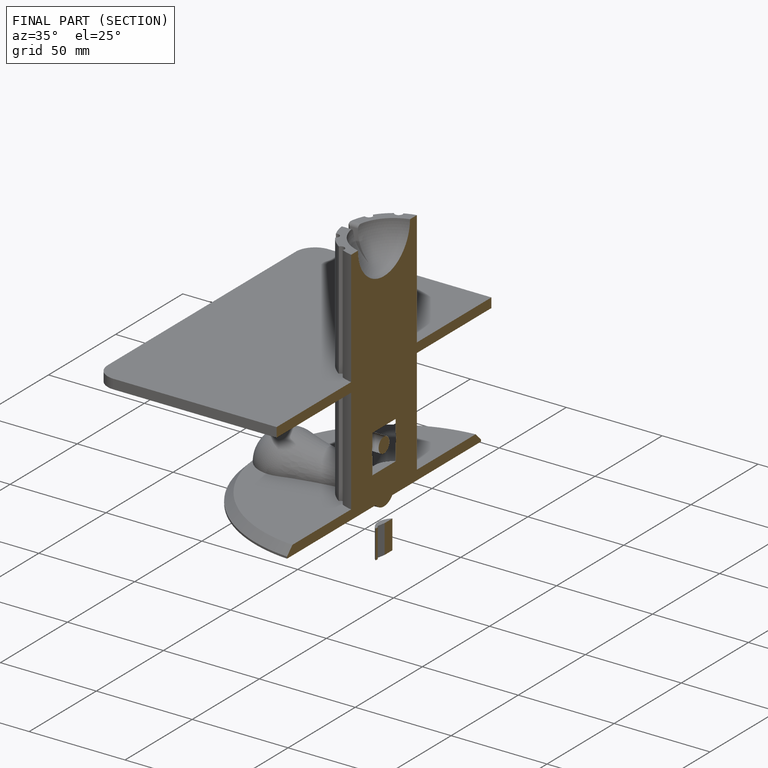
[diagram: finished part — half-section view (interior)]
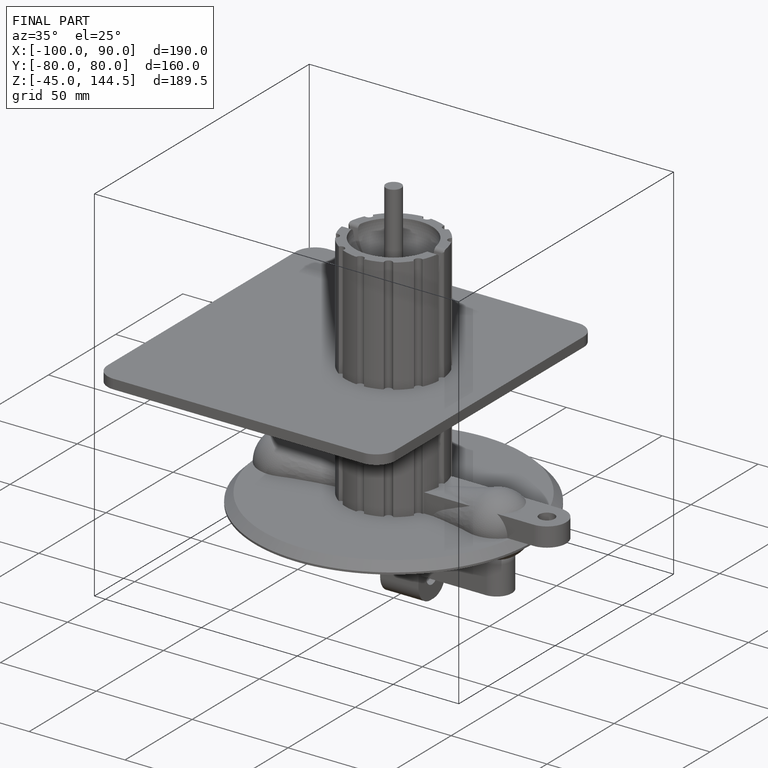
[diagram: finished part — iso view with bounding-box wireframe]
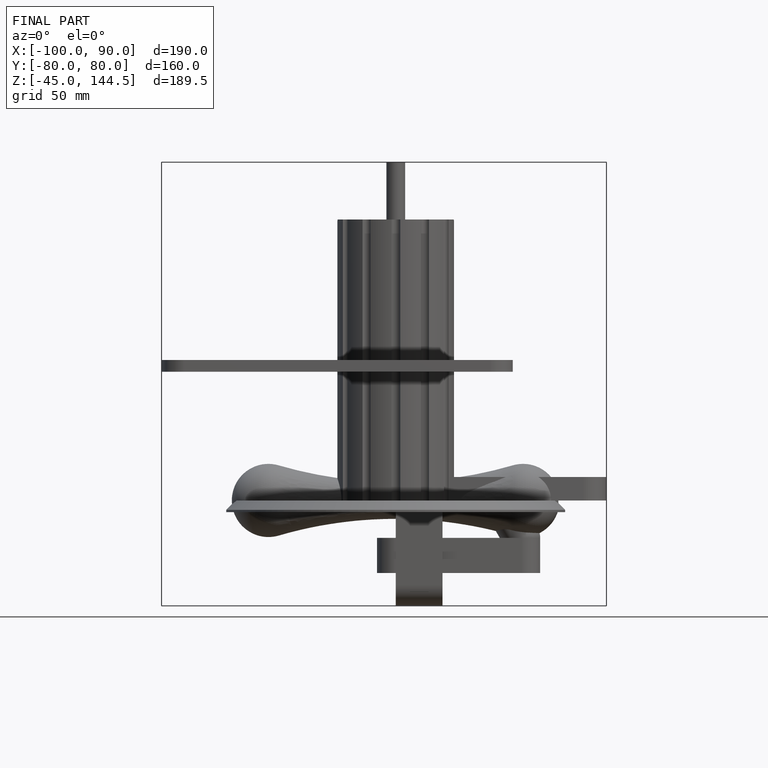
[diagram: finished part — front view with bounding-box wireframe]
